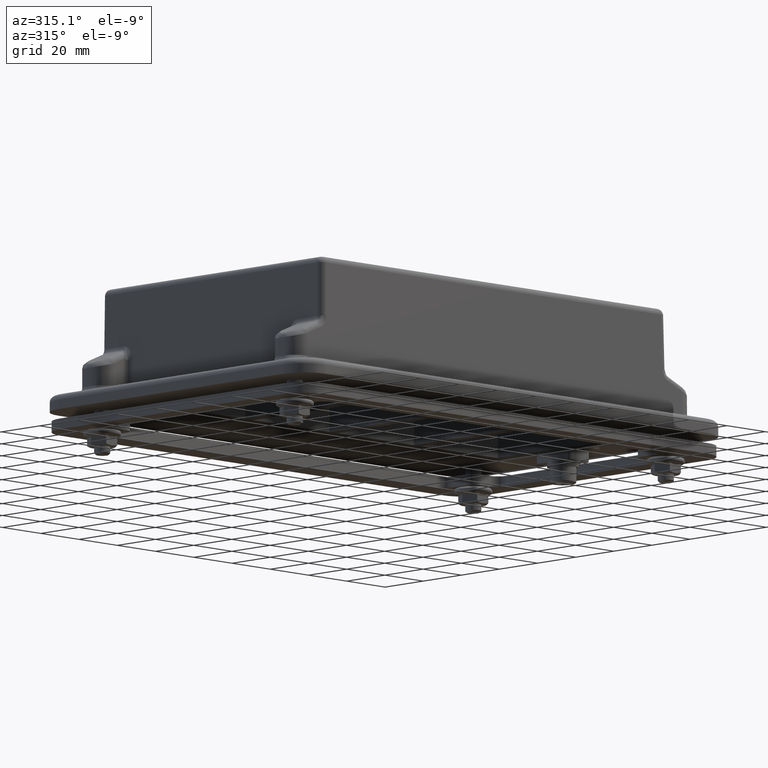
[diagram: clean part render]
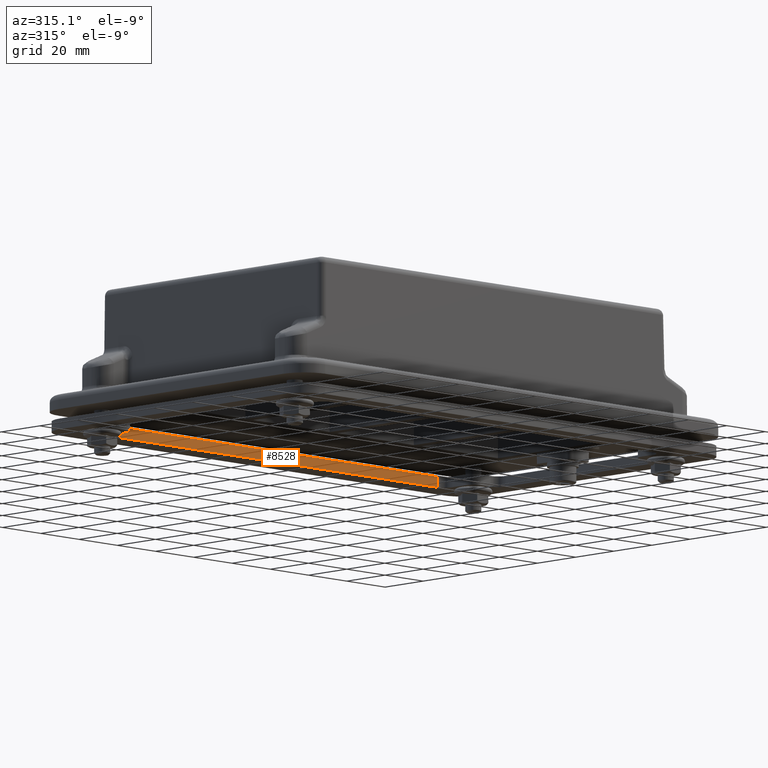
[diagram: same view with one face highlighted and labeled with its STEP entity id]
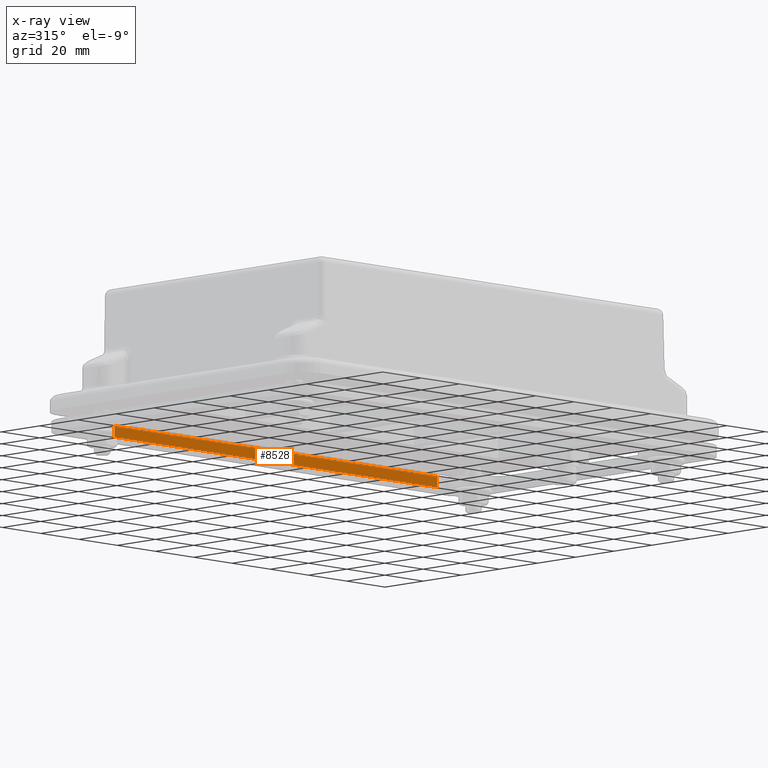
[diagram: x-ray of the same camera — body ghosted, the highlighted face saturated]
A machine part, auxiliary view. The second image highlights one B-rep face of the part: STEP entity #8528.
The next image is the same camera in x-ray: the body ghosted, the highlighted face saturated — about 0% of this face is hidden behind the body in this view.
In plain terms, the highlighted planar face has unit normal (0, -1, -0).
Its self-contained STEP definition (entity closure, byte-faithful):
#343=LINE('',#12120,#1080);
#373=LINE('',#12495,#1110);
#413=LINE('',#12599,#1150);
#414=LINE('',#12601,#1151);
#1080=VECTOR('',#9814,10.);
#1110=VECTOR('',#10040,10.);
#1150=VECTOR('',#10162,10.);
#1151=VECTOR('',#10165,10.);
#2067=FACE_OUTER_BOUND('',#2571,.T.);
#2571=EDGE_LOOP('',(#5752,#5753,#5754,#5755));
#3340=VERTEX_POINT('',#12117);
#3341=VERTEX_POINT('',#12119);
#3425=VERTEX_POINT('',#12492);
#3426=VERTEX_POINT('',#12494);
#4127=EDGE_CURVE('',#3341,#3340,#343,.T.);
#4257=EDGE_CURVE('',#3425,#3426,#373,.T.);
#4311=EDGE_CURVE('',#3426,#3340,#413,.T.);
#4312=EDGE_CURVE('',#3341,#3425,#414,.T.);
#5752=ORIENTED_EDGE('',*,*,#4311,.F.);
#5753=ORIENTED_EDGE('',*,*,#4257,.F.);
#5754=ORIENTED_EDGE('',*,*,#4312,.F.);
#5755=ORIENTED_EDGE('',*,*,#4127,.T.);
#7728=PLANE('',#9128);
#8528=ADVANCED_FACE('',(#2067),#7728,.T.);
#9128=AXIS2_PLACEMENT_3D('',#12603,#10167,#10168);
#9814=DIRECTION('',(1.,4.7205254093604E-16,3.72492550599099E-17));
#10040=DIRECTION('',(1.,4.7205254093604E-16,3.72492550599099E-17));
#10162=DIRECTION('',(3.72492550599099E-17,8.77347942792455E-32,-1.));
#10165=DIRECTION('',(-3.72492550599099E-17,-8.77347942792455E-32,1.));
#10167=DIRECTION('center_axis',(4.7205254093604E-16,-1.,-7.01511887802403E-32));
#10168=DIRECTION('ref_axis',(1.,4.72052540936041E-16,3.72492550599099E-17));
#12117=CARTESIAN_POINT('',(85.0000000000003,57.5000000000002,-50.4999999999999));
#12119=CARTESIAN_POINT('',(-83.4999999999997,57.5,-50.4999999999999));
#12120=CARTESIAN_POINT('',(-87.4999999999997,57.5,-50.4999999999999));
#12492=CARTESIAN_POINT('',(-83.4999999999997,57.5,-46.4999999999999));
#12494=CARTESIAN_POINT('',(85.0000000000003,57.5000000000002,-46.4999999999999));
#12495=CARTESIAN_POINT('',(-87.4999999999997,57.5,-46.4999999999999));
#12599=CARTESIAN_POINT('',(85.0000000000003,57.5000000000002,-50.4999999999999));
#12601=CARTESIAN_POINT('',(-83.4999999999997,57.5,-50.4999999999999));
#12603=CARTESIAN_POINT('Origin',(-87.4999999999997,57.5,-50.4999999999999));